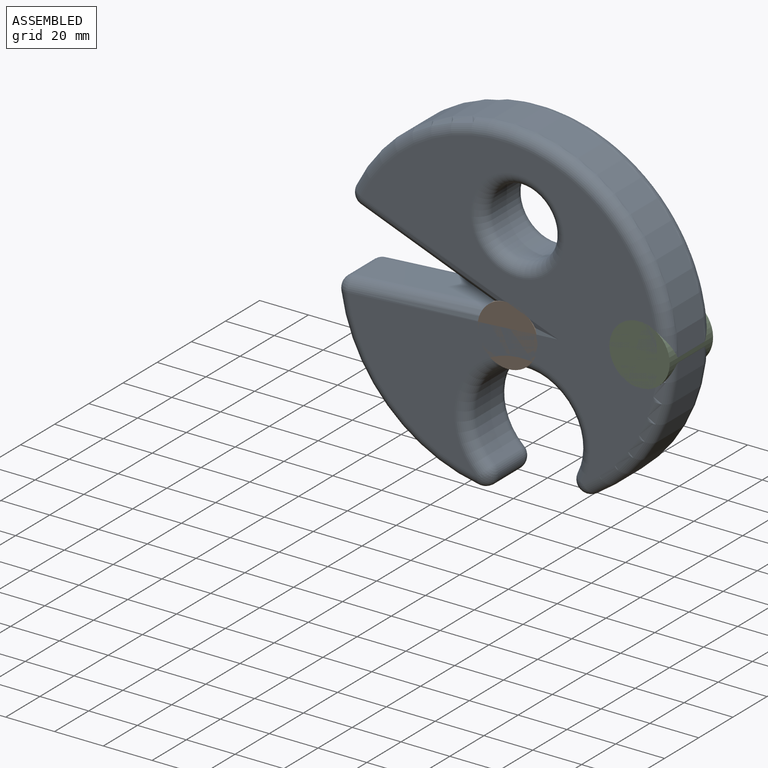
[diagram: assembled view]
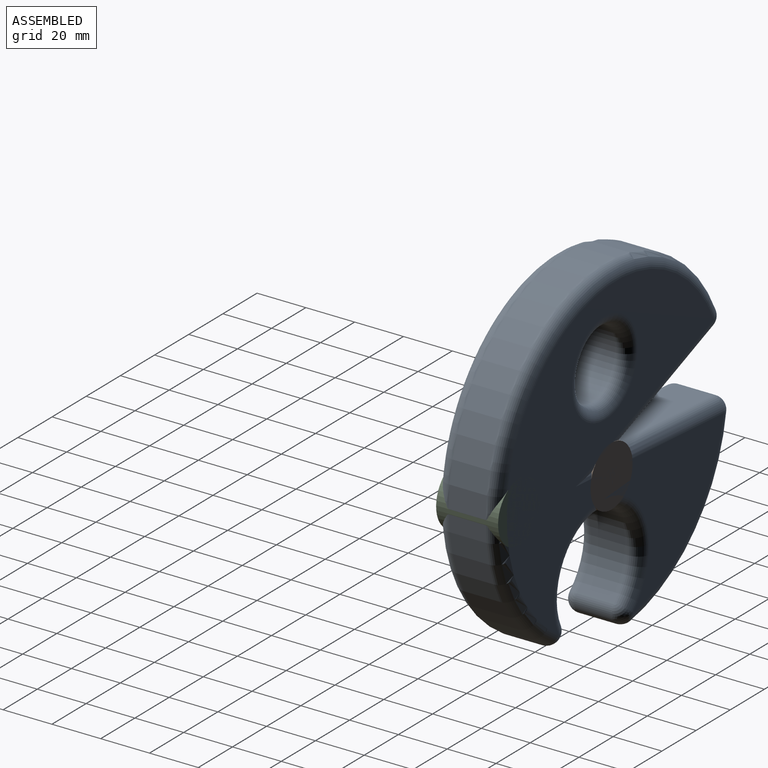
[diagram: assembled view, second angle]
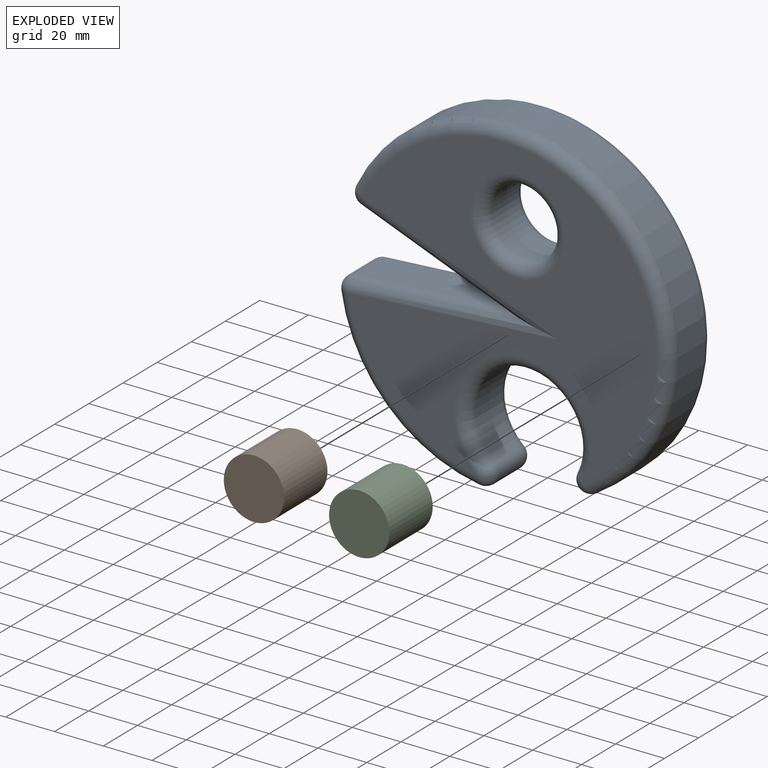
[diagram: exploded view]
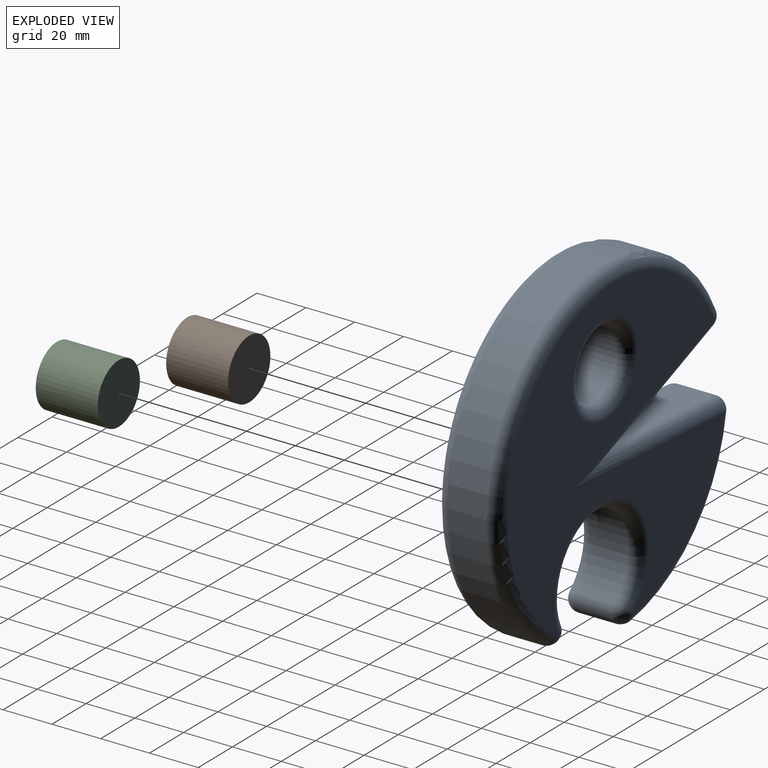
[diagram: exploded view, second angle]
ASSEMBLY  parts=3 mates=2
PART A: 32 faces, bbox 148.3x25.4x148.2 mm
  f0: torus R=63.8mm, axis (0,-1,0), area 1987.1mm2, adj f1,f7,f14,f28
  f1: cylinder r=68.88mm len=130.94mm, axis (0,1,0), area 3899.7mm2, adj f0,f11,f15,f26
  f2: torus R=63.8mm, axis (0,-1,0), area 677.9mm2, adj f3,f6,f21,f25
  f3: cylinder r=68.88mm len=57.97mm, axis (0,1,0), area 1330.4mm2, adj f2,f10,f20,f27
  f4: plane 59.31x22.94mm, normal (-0.36,0,-0.93), area 969.2mm2, adj f5,f22,f26,f30
  f5: plane 63.45x15.24mm, normal (-0.07,0,1), area 969.2mm2, adj f4,f23,f27,f31
  f6: plane 126.91x126.81mm, normal (0,-1,0), area 7779.8mm2, adj f2,f11,f12,f19,f22,f23
  f7: plane 126.91x126.81mm, normal (0,1,0), area 7779.8mm2, adj f0,f10,f13,f16,f30,f31
  f8: cylinder r=14.08mm len=28.15mm, axis (0,-1,0), area 1348mm2, adj f12,f13
  f9: cylinder r=22.68mm len=45.37mm, axis (0,-1,0), area 1538mm2, adj f15,f16,f19,f20
  f10: torus R=63.8mm, axis (0,-1,0), area 677.9mm2, adj f3,f7,f18,f29
  f11: torus R=63.8mm, axis (0,-1,0), area 1987.1mm2, adj f1,f6,f17,f24
  f12: torus R=19.16mm, axis (0,-1,0), area 798.3mm2, adj f6,f8
  f13: torus R=19.16mm, axis (0,-1,0), area 798.3mm2, adj f7,f8
  f14: sphere r=5.08mm, area 66.5mm2, adj f0,f15,f16
  f15: cylinder r=5.08mm len=15.24mm, axis (0,-1,0), area 199.5mm2, adj f1,f9,f14,f17
  f16: torus R=27.76mm, axis (0,-1,0), area 870.8mm2, adj f7,f9,f14,f18
  f17: sphere r=5.08mm, area 66.5mm2, adj f11,f15,f19
  f18: sphere r=5.08mm, area 66.5mm2, adj f10,f16,f20
  f19: torus R=27.76mm, axis (0,-1,0), area 870.8mm2, adj f6,f9,f17,f21
  f20: cylinder r=5.08mm len=15.24mm, axis (0,1,0), area 199.5mm2, adj f3,f9,f18,f21
  f21: sphere r=5.08mm, area 66.5mm2, adj f2,f19,f20
  f22: cylinder r=5.08mm len=82.54mm, axis (-0.93,0,0.36), area 574mm2, adj f4,f6,f23,f24
  f23: cylinder r=5.08mm len=86.68mm, axis (1,0,0.07), area 574mm2, adj f5,f6,f22,f25
  f24: sphere r=5.08mm, area 42.6mm2, adj f11,f22,f26
  f25: sphere r=5.08mm, area 42.6mm2, adj f2,f23,f27
  f26: cylinder r=5.08mm len=15.24mm, axis (0,1,0), area 127.8mm2, adj f1,f4,f24,f28
  f27: cylinder r=5.08mm len=15.24mm, axis (0,1,0), area 127.8mm2, adj f3,f5,f25,f29
  f28: sphere r=5.08mm, area 42.6mm2, adj f0,f26,f30
  f29: sphere r=5.08mm, area 42.6mm2, adj f10,f27,f31
  f30: cylinder r=5.08mm len=82.54mm, axis (0.93,0,-0.36), area 574mm2, adj f4,f7,f28,f31
  f31: cylinder r=5.08mm len=86.68mm, axis (-1,0,-0.07), area 574mm2, adj f5,f7,f29,f30
PART B: 3 faces, bbox 24.7x25.4x24.7 mm
  f0: cylinder r=12.36mm len=25.4mm, axis (0,1,0), area 1972.6mm2, adj f1,f2
  f1: plane 24.72x24.72mm, normal (0,-1,0), area 480mm2, adj f0
  f2: plane 24.72x24.72mm, normal (0,1,0), area 480mm2, adj f0
PART C: same geometry as B
PLACE A t=(-100.24,-21.09,-65.44)mm fixed
PLACE B rot(axis=(0,-1,0),73.7deg) t=(-29.25,-21.09,-169.94)mm
PLACE C rot(axis=(0,-1,0),34.1deg) t=(-52.52,-21.09,-183.99)mm
MATE planar C.f0 <-> A.f6  axis (0,-1,0) through (-43.72,-46.49,-65.65)mm
MATE planar B.f0 <-> A.f7  axis (0,1,0) through (-97.78,-21.09,-73.07)mm
